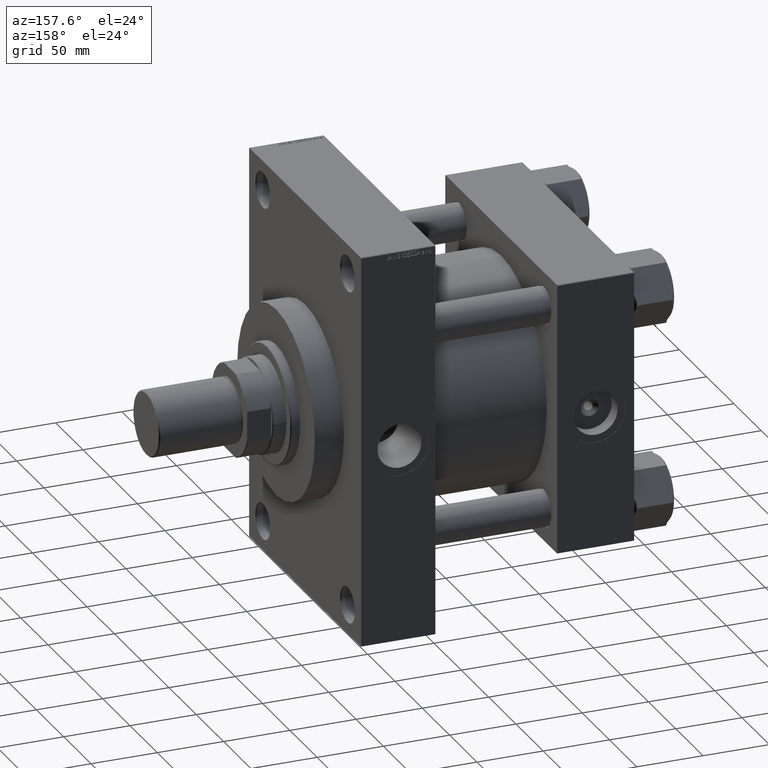
[diagram: clean part render]
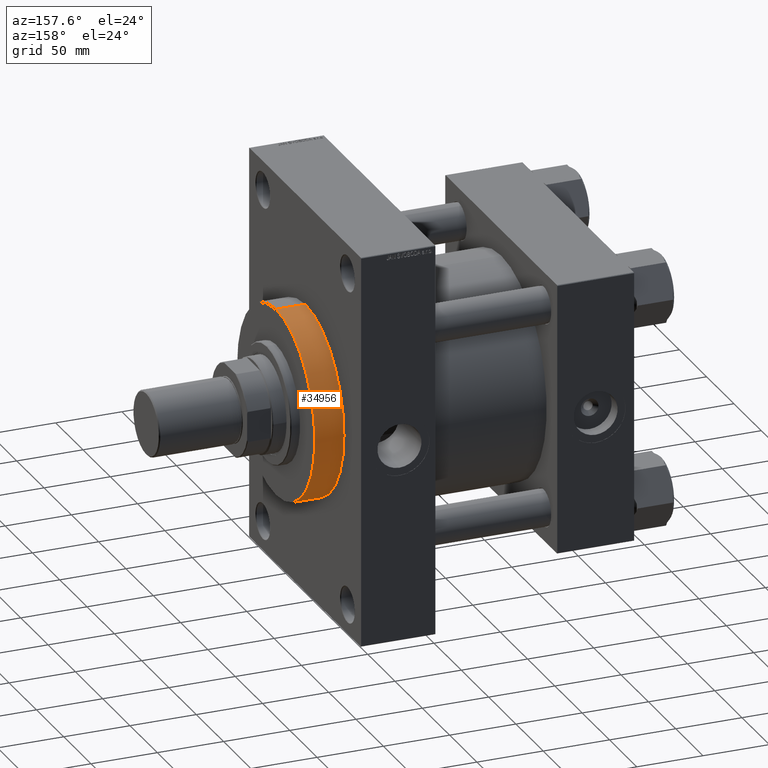
[diagram: same view with one face highlighted and labeled with its STEP entity id]
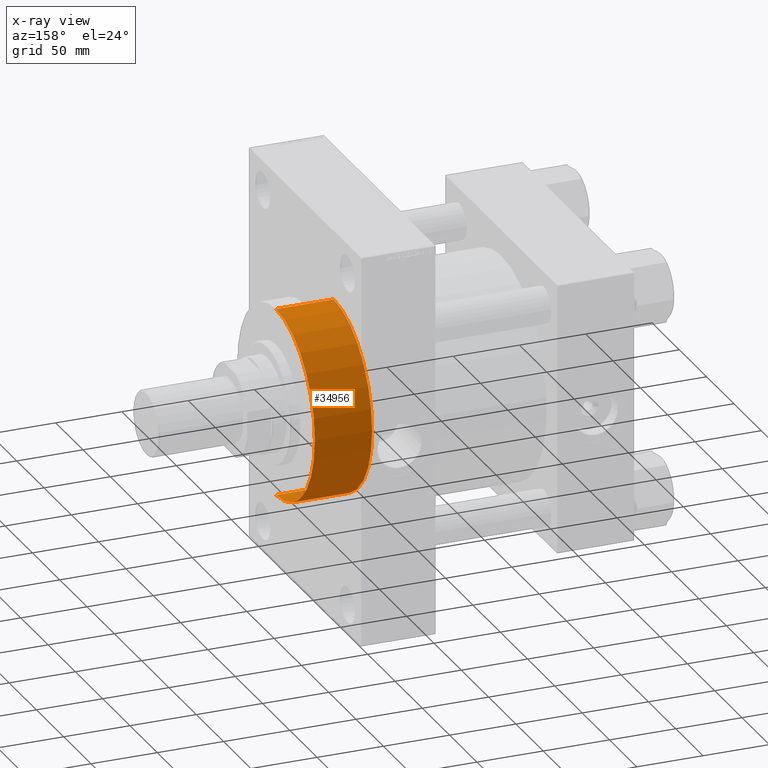
[diagram: x-ray of the same camera — body ghosted, the highlighted face saturated]
A machine part, auxiliary view. The second image highlights one B-rep face of the part: STEP entity #34956.
The next image is the same camera in x-ray: the body ghosted, the highlighted face saturated — about 1% of this face is hidden behind the body in this view.
In plain terms, the highlighted cylindrical surface (partial cylindrical patch) has radius 71 mm, axis along (-1, 0, 0).
Its self-contained STEP definition (entity closure, byte-faithful):
#1921 = EDGE_CURVE ( 'NONE', #41802, #30125, #35056, .T. ) ;
#2237 = DIRECTION ( 'NONE',  ( 1.000000000000000000, 0.000000000000000000, 0.000000000000000000 ) ) ;
#3298 = EDGE_LOOP ( 'NONE', ( #34720, #9204, #11903, #5821 ) ) ;
#5047 = CARTESIAN_POINT ( 'NONE',  ( 71.00000000000001421, 8.694992273946208141E-15, 0.000000000000000000 ) ) ;
#5821 = ORIENTED_EDGE ( 'NONE', *, *, #24598, .T. ) ;
#6133 = DIRECTION ( 'NONE',  ( 0.000000000000000000, 0.000000000000000000, 1.000000000000000000 ) ) ;
#6263 = CIRCLE ( 'NONE', #32719, 71.00000000000001421 ) ;
#6709 = DIRECTION ( 'NONE',  ( -1.000000000000000000, 0.000000000000000000, 0.000000000000000000 ) ) ;
#9204 = ORIENTED_EDGE ( 'NONE', *, *, #29702, .F. ) ;
#9557 = CARTESIAN_POINT ( 'NONE',  ( 0.000000000000000000, 0.000000000000000000, 0.000000000000000000 ) ) ;
#11903 = ORIENTED_EDGE ( 'NONE', *, *, #1921, .T. ) ;
#12799 = DIRECTION ( 'NONE',  ( -0.000000000000000000, -0.000000000000000000, -1.000000000000000000 ) ) ;
#13757 = AXIS2_PLACEMENT_3D ( 'NONE', #18636, #40052, #6709 ) ;
#14268 = CYLINDRICAL_SURFACE ( 'NONE', #13757, 71.00000000000001421 ) ;
#15669 = AXIS2_PLACEMENT_3D ( 'NONE', #43045, #24100, #38682 ) ;
#18636 = CARTESIAN_POINT ( 'NONE',  ( 0.000000000000000000, 0.000000000000000000, 43.25999999999999801 ) ) ;
#19297 = CARTESIAN_POINT ( 'NONE',  ( 71.00000000000001421, 8.694992273946208141E-15, 43.25999999999999801 ) ) ;
#19566 = CIRCLE ( 'NONE', #15669, 71.00000000000001421 ) ;
#19741 = CARTESIAN_POINT ( 'NONE',  ( -71.00000000000001421, 0.000000000000000000, 43.25999999999999801 ) ) ;
#23888 = VECTOR ( 'NONE', #12799, 1000.000000000000000 ) ;
#24100 = DIRECTION ( 'NONE',  ( 0.000000000000000000, 0.000000000000000000, 1.000000000000000000 ) ) ;
#24598 = EDGE_CURVE ( 'NONE', #30125, #35587, #6263, .T. ) ;
#29702 = EDGE_CURVE ( 'NONE', #41802, #47855, #19566, .T. ) ;
#30125 = VERTEX_POINT ( 'NONE', #36842 ) ;
#30698 = DIRECTION ( 'NONE',  ( -0.000000000000000000, -0.000000000000000000, -1.000000000000000000 ) ) ;
#31783 = CARTESIAN_POINT ( 'NONE',  ( 71.00000000000001421, 8.694992273946208141E-15, 43.25999999999999801 ) ) ;
#32063 = EDGE_CURVE ( 'NONE', #47855, #35587, #46129, .T. ) ;
#32719 = AXIS2_PLACEMENT_3D ( 'NONE', #9557, #6133, #2237 ) ;
#34720 = ORIENTED_EDGE ( 'NONE', *, *, #32063, .F. ) ;
#34956 = ADVANCED_FACE ( 'NONE', ( #47592 ), #14268, .T. ) ;
#35056 = LINE ( 'NONE', #19741, #39642 ) ;
#35587 = VERTEX_POINT ( 'NONE', #5047 ) ;
#36842 = CARTESIAN_POINT ( 'NONE',  ( -71.00000000000001421, 0.000000000000000000, 0.000000000000000000 ) ) ;
#38682 = DIRECTION ( 'NONE',  ( 1.000000000000000000, 0.000000000000000000, 0.000000000000000000 ) ) ;
#39642 = VECTOR ( 'NONE', #30698, 1000.000000000000000 ) ;
#40052 = DIRECTION ( 'NONE',  ( -0.000000000000000000, -0.000000000000000000, -1.000000000000000000 ) ) ;
#41802 = VERTEX_POINT ( 'NONE', #44360 ) ;
#43045 = CARTESIAN_POINT ( 'NONE',  ( 0.000000000000000000, 0.000000000000000000, 43.25999999999999801 ) ) ;
#44360 = CARTESIAN_POINT ( 'NONE',  ( -71.00000000000001421, 0.000000000000000000, 43.25999999999999801 ) ) ;
#46129 = LINE ( 'NONE', #31783, #23888 ) ;
#47592 = FACE_OUTER_BOUND ( 'NONE', #3298, .T. ) ;
#47855 = VERTEX_POINT ( 'NONE', #19297 ) ;